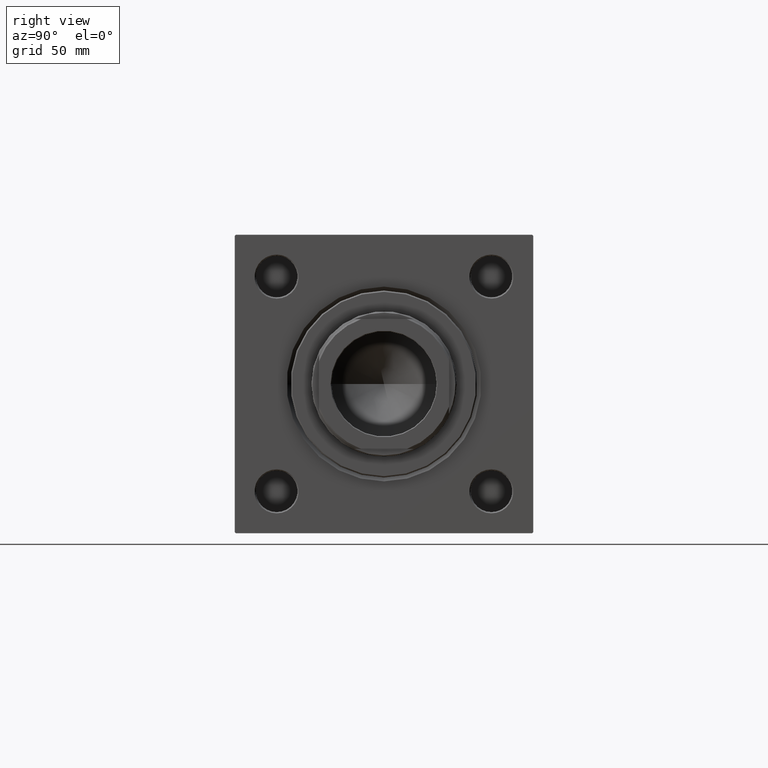
[diagram: clean part render]
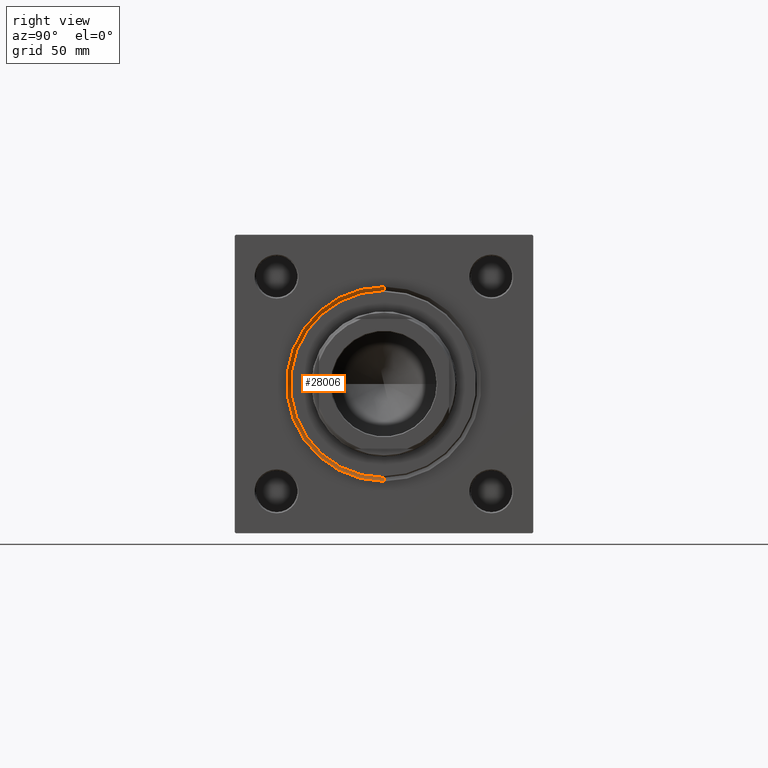
[diagram: same view with one face highlighted and labeled with its STEP entity id]
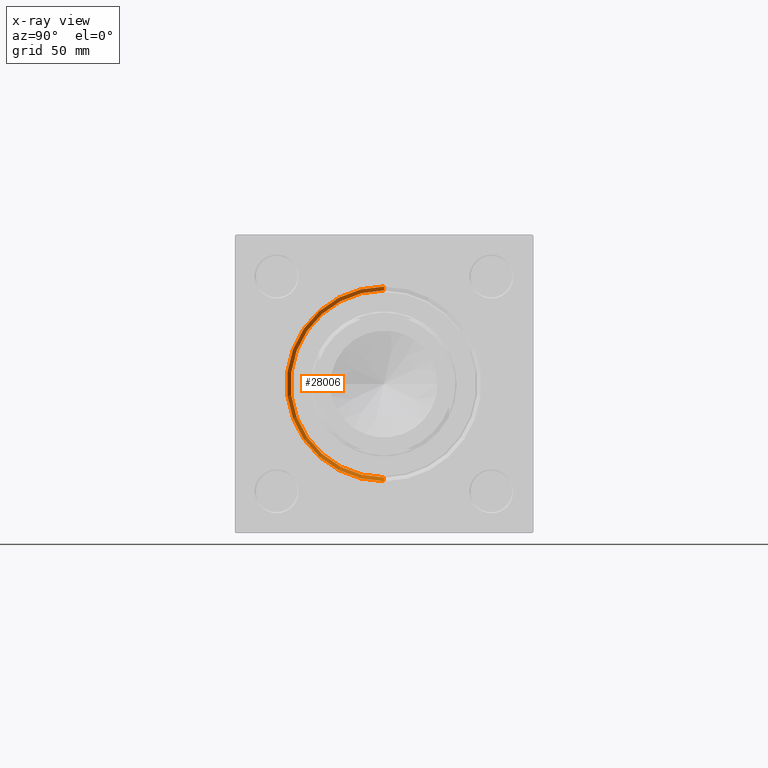
[diagram: x-ray of the same camera — body ghosted, the highlighted face saturated]
A machine part, right view. The second image highlights one B-rep face of the part: STEP entity #28006.
The next image is the same camera in x-ray: the body ghosted, the highlighted face saturated — about 0% of this face is hidden behind the body in this view.
In plain terms, the highlighted conical surface has half-angle 45 deg.
Its self-contained STEP definition (entity closure, byte-faithful):
#1913 = CARTESIAN_POINT ( 'NONE',  ( 177.4999999999999716, 0.000000000000000000, -36.00000000000000000 ) ) ;
#3040 = DIRECTION ( 'NONE',  ( 0.000000000000000000, 0.000000000000000000, 1.000000000000000000 ) ) ;
#3377 = EDGE_CURVE ( 'NONE', #4877, #31319, #21112, .T. ) ;
#4116 = FACE_OUTER_BOUND ( 'NONE', #15485, .T. ) ;
#4877 = VERTEX_POINT ( 'NONE', #25338 ) ;
#5742 = VECTOR ( 'NONE', #21061, 1000.000000000000000 ) ;
#7346 = CONICAL_SURFACE ( 'NONE', #35945, 36.00000000000000000, 0.7853981633974415066 ) ;
#8777 = LINE ( 'NONE', #40756, #5742 ) ;
#8948 = CIRCLE ( 'NONE', #23676, 37.50000000000000711 ) ;
#10757 = ORIENTED_EDGE ( 'NONE', *, *, #34258, .F. ) ;
#11882 = ORIENTED_EDGE ( 'NONE', *, *, #12667, .F. ) ;
#12667 = EDGE_CURVE ( 'NONE', #31319, #39755, #8948, .T. ) ;
#13433 = DIRECTION ( 'NONE',  ( 0.7071067811865524577, 0.000000000000000000, -0.7071067811865426878 ) ) ;
#15296 = DIRECTION ( 'NONE',  ( 0.000000000000000000, 0.000000000000000000, 1.000000000000000000 ) ) ;
#15485 = EDGE_LOOP ( 'NONE', ( #10757, #50328, #11882, #17547 ) ) ;
#16247 = CARTESIAN_POINT ( 'NONE',  ( 179.0000000000000000, 4.592425496802575156E-15, 37.50000000000000711 ) ) ;
#17547 = ORIENTED_EDGE ( 'NONE', *, *, #3377, .F. ) ;
#18060 = AXIS2_PLACEMENT_3D ( 'NONE', #22490, #42206, #3040 ) ;
#21061 = DIRECTION ( 'NONE',  ( 0.7071067811865524577, 8.659560562354873694E-17, 0.7071067811865426878 ) ) ;
#21112 = LINE ( 'NONE', #1913, #25068 ) ;
#22490 = CARTESIAN_POINT ( 'NONE',  ( 177.4999999999999716, 0.000000000000000000, 0.000000000000000000 ) ) ;
#23676 = AXIS2_PLACEMENT_3D ( 'NONE', #50393, #34745, #15296 ) ;
#25068 = VECTOR ( 'NONE', #13433, 1000.000000000000000 ) ;
#25338 = CARTESIAN_POINT ( 'NONE',  ( 177.4999999999999716, 0.000000000000000000, -36.00000000000000000 ) ) ;
#26892 = DIRECTION ( 'NONE',  ( 1.000000000000000000, 0.000000000000000000, 0.000000000000000000 ) ) ;
#27616 = VERTEX_POINT ( 'NONE', #44932 ) ;
#28006 = ADVANCED_FACE ( 'NONE', ( #4116 ), #7346, .F. ) ;
#28050 = CARTESIAN_POINT ( 'NONE',  ( 179.0000000000000000, 0.000000000000000000, -37.50000000000000711 ) ) ;
#28589 = EDGE_CURVE ( 'NONE', #27616, #39755, #8777, .T. ) ;
#30296 = CIRCLE ( 'NONE', #18060, 36.00000000000000000 ) ;
#31319 = VERTEX_POINT ( 'NONE', #28050 ) ;
#34258 = EDGE_CURVE ( 'NONE', #27616, #4877, #30296, .T. ) ;
#34745 = DIRECTION ( 'NONE',  ( -1.000000000000000000, 0.000000000000000000, -0.000000000000000000 ) ) ;
#35945 = AXIS2_PLACEMENT_3D ( 'NONE', #38180, #26892, #46394 ) ;
#38180 = CARTESIAN_POINT ( 'NONE',  ( 177.4999999999999716, 0.000000000000000000, 0.000000000000000000 ) ) ;
#39755 = VERTEX_POINT ( 'NONE', #16247 ) ;
#40756 = CARTESIAN_POINT ( 'NONE',  ( 177.4999999999999716, 4.408728476930470856E-15, 36.00000000000000000 ) ) ;
#42206 = DIRECTION ( 'NONE',  ( 1.000000000000000000, 0.000000000000000000, 0.000000000000000000 ) ) ;
#44932 = CARTESIAN_POINT ( 'NONE',  ( 177.4999999999999716, 4.408728476930470856E-15, 36.00000000000000000 ) ) ;
#46394 = DIRECTION ( 'NONE',  ( 0.000000000000000000, 0.000000000000000000, -1.000000000000000000 ) ) ;
#50328 = ORIENTED_EDGE ( 'NONE', *, *, #28589, .T. ) ;
#50393 = CARTESIAN_POINT ( 'NONE',  ( 179.0000000000000000, 0.000000000000000000, 0.000000000000000000 ) ) ;